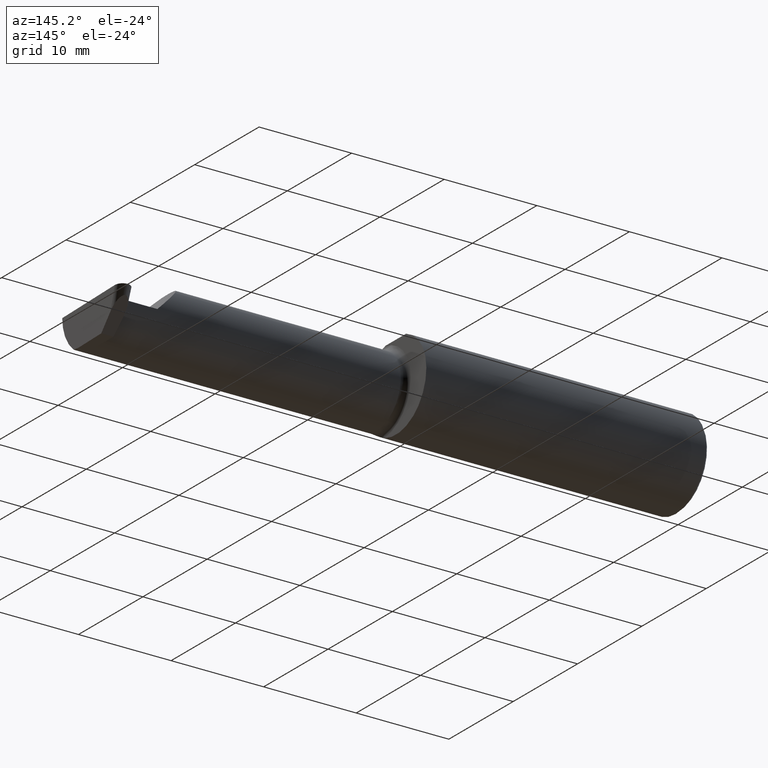
[diagram: clean part render]
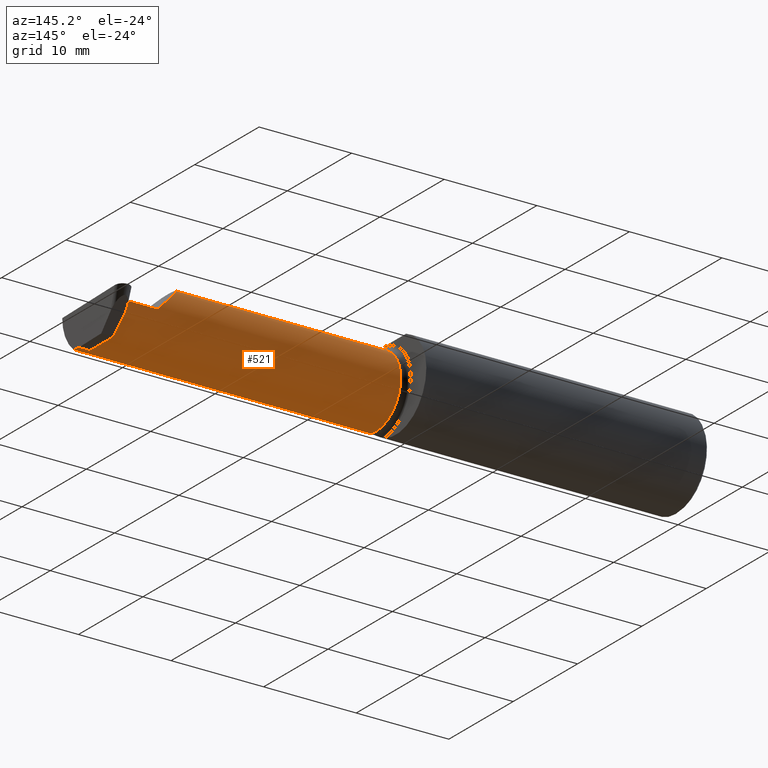
[diagram: same view with one face highlighted and labeled with its STEP entity id]
A machine part, auxiliary view. The second image highlights one B-rep face of the part: STEP entity #521.
In plain terms, the highlighted cylindrical surface (partial cylindrical patch) has radius 3.81 mm, axis along (-1, -0, -0).
Its self-contained STEP definition (entity closure, byte-faithful):
#27 = CARTESIAN_POINT ( 'NONE',  ( 2.442590694315768474, 0.002105059811798063937, -0.1499999999999999667 ) ) ;
#32 = DIRECTION ( 'NONE',  ( -1.000000000000000000, -6.902170632284375996E-17, -0.000000000000000000 ) ) ;
#41 = EDGE_CURVE ( 'NONE', #201, #161, #643, .T. ) ;
#49 = CARTESIAN_POINT ( 'NONE',  ( 2.488744025780162961, -0.09477667630339420279, -0.1499999999999999667 ) ) ;
#52 = DIRECTION ( 'NONE',  ( 0.000000000000000000, -1.000000000000000000, 0.000000000000000000 ) ) ;
#54 = CARTESIAN_POINT ( 'NONE',  ( 2.155331797197863608, 0.06664999999999991764, 0.1046682028021361927 ) ) ;
#74 = LINE ( 'NONE', #399, #316 ) ;
#77 = ORIENTED_EDGE ( 'NONE', *, *, #598, .F. ) ;
#81 = VERTEX_POINT ( 'NONE', #263 ) ;
#86 = ORIENTED_EDGE ( 'NONE', *, *, #476, .F. ) ;
#87 = CARTESIAN_POINT ( 'NONE',  ( 2.488026713523222799, -0.1172600179964006922, -0.1461167706989302817 ) ) ;
#91 = CARTESIAN_POINT ( 'NONE',  ( 2.430739223982273156, 0.06664999999999991764, 0.000000000000000000 ) ) ;
#99 = LINE ( 'NONE', #384, #151 ) ;
#109 = DIRECTION ( 'NONE',  ( -1.000000000000000000, -0.000000000000000000, -0.000000000000000000 ) ) ;
#141 = AXIS2_PLACEMENT_3D ( 'NONE', #205, #328, #52 ) ;
#151 = VECTOR ( 'NONE', #635, 39.37007874015748143 ) ;
#159 = LINE ( 'NONE', #376, #477 ) ;
#161 = VERTEX_POINT ( 'NONE', #501 ) ;
#164 = CARTESIAN_POINT ( 'NONE',  ( 2.260000000000000231, 0.06664999999999993152, 1.592040838891559588E-16 ) ) ;
#165 = EDGE_CURVE ( 'NONE', #532, #201, #568, .T. ) ;
#172 = DIRECTION ( 'NONE',  ( 1.000000000000000000, 6.902170632284375996E-17, 0.000000000000000000 ) ) ;
#176 = CARTESIAN_POINT ( 'NONE',  ( 2.439954497345508511, 0.06655862405284596051, -0.005234924505382013322 ) ) ;
#187 = EDGE_LOOP ( 'NONE', ( #203, #370, #615, #676, #595, #645, #77, #86, #430, #259 ) ) ;
#195 = CARTESIAN_POINT ( 'NONE',  ( 2.488370294460939380, -0.1061291577212409576, -0.1486999626928445506 ) ) ;
#197 = CARTESIAN_POINT ( 'NONE',  ( 2.430647848035137226, 0.06655862405286423755, -0.005234924505377647891 ) ) ;
#200 = CARTESIAN_POINT ( 'NONE',  ( 2.488026713523222799, -0.1172600179964006922, -0.1461167706989302817 ) ) ;
#201 = VERTEX_POINT ( 'NONE', #346 ) ;
#203 = ORIENTED_EDGE ( 'NONE', *, *, #245, .T. ) ;
#204 = CIRCLE ( 'NONE', #252, 0.1499999999999999112 ) ;
#205 = CARTESIAN_POINT ( 'NONE',  ( 1.199999999999999956, -0.08335000000000007681, 0.000000000000000000 ) ) ;
#220 = VERTEX_POINT ( 'NONE', #622 ) ;
#243 =( BOUNDED_CURVE ( )  B_SPLINE_CURVE ( 3, ( #511, #27, #417, #469 ),
 .UNSPECIFIED., .F., .T. ) 
 B_SPLINE_CURVE_WITH_KNOTS ( ( 4, 4 ),
 ( 3.159045946109732661, 4.694935687864692397 ),
 .UNSPECIFIED. ) 
 CURVE ( )  GEOMETRIC_REPRESENTATION_ITEM ( )  RATIONAL_B_SPLINE_CURVE ( ( 1.000000000000000000, 0.8128932002257790446, 0.8128932002257790446, 1.000000000000000000 ) ) 
 REPRESENTATION_ITEM ( '' )  );
#245 = EDGE_CURVE ( 'NONE', #587, #394, #693, .T. ) ;
#252 = AXIS2_PLACEMENT_3D ( 'NONE', #614, #343, #445 ) ;
#259 = ORIENTED_EDGE ( 'NONE', *, *, #323, .F. ) ;
#263 = CARTESIAN_POINT ( 'NONE',  ( 2.430647848035137226, 0.06655862405286423755, -0.005234924505377647891 ) ) ;
#268 = CARTESIAN_POINT ( 'NONE',  ( 1.225000000000000089, -0.1172600179964007477, 0.1461167706989301984 ) ) ;
#294 = CARTESIAN_POINT ( 'NONE',  ( 1.225000000000000089, -0.1172600179964008171, -0.1461167706989301984 ) ) ;
#302 = VECTOR ( 'NONE', #462, 39.37007874015748143 ) ;
#304 = B_SPLINE_CURVE_WITH_KNOTS ( 'NONE', 3,
 ( #197, #313, #576, #91 ),
 .UNSPECIFIED., .F., .F.,
 ( 4, 4 ),
 ( 0.000000000000000000, 1.000000000000000000 ),
 .UNSPECIFIED. ) ;
#313 = CARTESIAN_POINT ( 'NONE',  ( 2.430678306684182832, 0.06658908270190946888, -0.003489949670251768152 ) ) ;
#316 = VECTOR ( 'NONE', #172, 39.37007874015748143 ) ;
#317 = CARTESIAN_POINT ( 'NONE',  ( 2.489143054109411057, -0.08334999999999997966, -0.1500000000000000500 ) ) ;
#323 = EDGE_CURVE ( 'NONE', #587, #514, #393, .T. ) ;
#328 = DIRECTION ( 'NONE',  ( -1.000000000000000000, -6.902170632284375996E-17, -0.000000000000000000 ) ) ;
#335 = VECTOR ( 'NONE', #32, 39.37007874015748143 ) ;
#338 = EDGE_CURVE ( 'NONE', #81, #220, #304, .T. ) ;
#343 = DIRECTION ( 'NONE',  ( -1.000000000000000000, -6.902170632284375996E-17, -0.000000000000000000 ) ) ;
#346 = CARTESIAN_POINT ( 'NONE',  ( 2.113883229301068312, -0.1172600179964008726, 0.1461167706989301429 ) ) ;
#351 = CARTESIAN_POINT ( 'NONE',  ( 2.489143054109411057, -0.08334999999999997966, -0.1500000000000000500 ) ) ;
#370 = ORIENTED_EDGE ( 'NONE', *, *, #692, .F. ) ;
#376 = CARTESIAN_POINT ( 'NONE',  ( 2.733184360054361939, -0.08334999999999997966, -0.1500000000000000500 ) ) ;
#379 = FACE_OUTER_BOUND ( 'NONE', #187, .T. ) ;
#380 = EDGE_CURVE ( 'NONE', #161, #220, #74, .T. ) ;
#384 = CARTESIAN_POINT ( 'NONE',  ( 1.199999999999998845, 0.06655862405284594663, -0.005234924505898153405 ) ) ;
#387 = CARTESIAN_POINT ( 'NONE',  ( 2.113883229301068312, -0.1172600179964008726, 0.1461167706989301429 ) ) ;
#393 =( BOUNDED_CURVE ( )  B_SPLINE_CURVE ( 3, ( #200, #195, #49, #317 ),
 .UNSPECIFIED., .F., .T. ) 
 B_SPLINE_CURVE_WITH_KNOTS ( ( 4, 4 ),
 ( 0.8789888184544036864, 1.107026853503848773 ),
 .UNSPECIFIED. ) 
 CURVE ( )  GEOMETRIC_REPRESENTATION_ITEM ( )  RATIONAL_B_SPLINE_CURVE ( ( 1.000000000000000000, 0.9956712472009929815, 0.9956712472009929815, 1.000000000000000000 ) ) 
 REPRESENTATION_ITEM ( '' )  );
#394 = VERTEX_POINT ( 'NONE', #294 ) ;
#399 = CARTESIAN_POINT ( 'NONE',  ( 1.199999999999999956, 0.06664999999999984825, 1.592040838891559588E-16 ) ) ;
#417 = CARTESIAN_POINT ( 'NONE',  ( 2.441498648347320888, 0.06357628547474589165, -0.09063792740366172218 ) ) ;
#421 = CARTESIAN_POINT ( 'NONE',  ( 2.442617647571764028, -0.08334999999999999354, -0.1499999999999999944 ) ) ;
#430 = ORIENTED_EDGE ( 'NONE', *, *, #606, .F. ) ;
#445 = DIRECTION ( 'NONE',  ( 0.000000000000000000, -1.000000000000000000, 0.000000000000000000 ) ) ;
#449 = CARTESIAN_POINT ( 'NONE',  ( 1.830930450000000098, -0.1172600179964007477, 0.1461167706989302817 ) ) ;
#462 = DIRECTION ( 'NONE',  ( 1.000000000000000000, 6.902170632284375996E-17, 0.000000000000000000 ) ) ;
#469 = CARTESIAN_POINT ( 'NONE',  ( 2.439954497345508511, 0.06655862405284596051, -0.005234924505382013322 ) ) ;
#476 = EDGE_CURVE ( 'NONE', #534, #503, #243, .T. ) ;
#477 = VECTOR ( 'NONE', #109, 39.37007874015748143 ) ;
#491 = CARTESIAN_POINT ( 'NONE',  ( 2.090221225029925911, -0.01530148607434188811, 0.1697787749700727378 ) ) ;
#501 = CARTESIAN_POINT ( 'NONE',  ( 2.260000000000000231, 0.06664999999999993152, 1.592040838891559588E-16 ) ) ;
#503 = VERTEX_POINT ( 'NONE', #176 ) ;
#511 = CARTESIAN_POINT ( 'NONE',  ( 2.442617647571764028, -0.08334999999999999354, -0.1499999999999999944 ) ) ;
#514 = VERTEX_POINT ( 'NONE', #351 ) ;
#521 = ADVANCED_FACE ( 'NONE', ( #379 ), #580, .T. ) ;
#532 = VERTEX_POINT ( 'NONE', #268 ) ;
#534 = VERTEX_POINT ( 'NONE', #421 ) ;
#568 = LINE ( 'NONE', #449, #302 ) ;
#576 = CARTESIAN_POINT ( 'NONE',  ( 2.430708765333227994, 0.06661954135095470020, -0.001744974835125883859 ) ) ;
#580 = CYLINDRICAL_SURFACE ( 'NONE', #141, 0.1499999999999999667 ) ;
#587 = VERTEX_POINT ( 'NONE', #87 ) ;
#595 = ORIENTED_EDGE ( 'NONE', *, *, #380, .T. ) ;
#598 = EDGE_CURVE ( 'NONE', #503, #81, #99, .T. ) ;
#606 = EDGE_CURVE ( 'NONE', #514, #534, #159, .T. ) ;
#614 = CARTESIAN_POINT ( 'NONE',  ( 1.225000000000000089, -0.08335000000000007681, 0.000000000000000000 ) ) ;
#615 = ORIENTED_EDGE ( 'NONE', *, *, #165, .T. ) ;
#622 = CARTESIAN_POINT ( 'NONE',  ( 2.430739223982273156, 0.06664999999999991764, 0.000000000000000000 ) ) ;
#635 = DIRECTION ( 'NONE',  ( -1.000000000000000000, -6.902170632284375996E-17, -0.000000000000000000 ) ) ;
#643 =( BOUNDED_CURVE ( )  B_SPLINE_CURVE ( 3, ( #387, #491, #54, #164 ),
 .UNSPECIFIED., .F., .T. ) 
 B_SPLINE_CURVE_WITH_KNOTS ( ( 4, 4 ),
 ( 6.055147272130140479, 7.853981633974482790 ),
 .UNSPECIFIED. ) 
 CURVE ( )  GEOMETRIC_REPRESENTATION_ITEM ( )  RATIONAL_B_SPLINE_CURVE ( ( 1.000000000000000000, 0.7480442670255262883, 0.7480442670255262883, 1.000000000000000000 ) ) 
 REPRESENTATION_ITEM ( '' )  );
#645 = ORIENTED_EDGE ( 'NONE', *, *, #338, .F. ) ;
#676 = ORIENTED_EDGE ( 'NONE', *, *, #41, .T. ) ;
#684 = CARTESIAN_POINT ( 'NONE',  ( 1.830930450000000098, -0.1172600179964007477, -0.1461167706989302817 ) ) ;
#692 = EDGE_CURVE ( 'NONE', #532, #394, #204, .T. ) ;
#693 = LINE ( 'NONE', #684, #335 ) ;